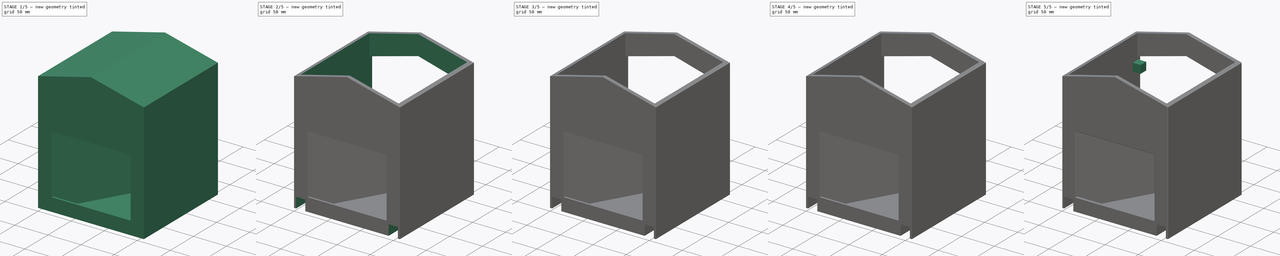
[diagram: build sequence overview — one tinted view per stage of 5, left to right]
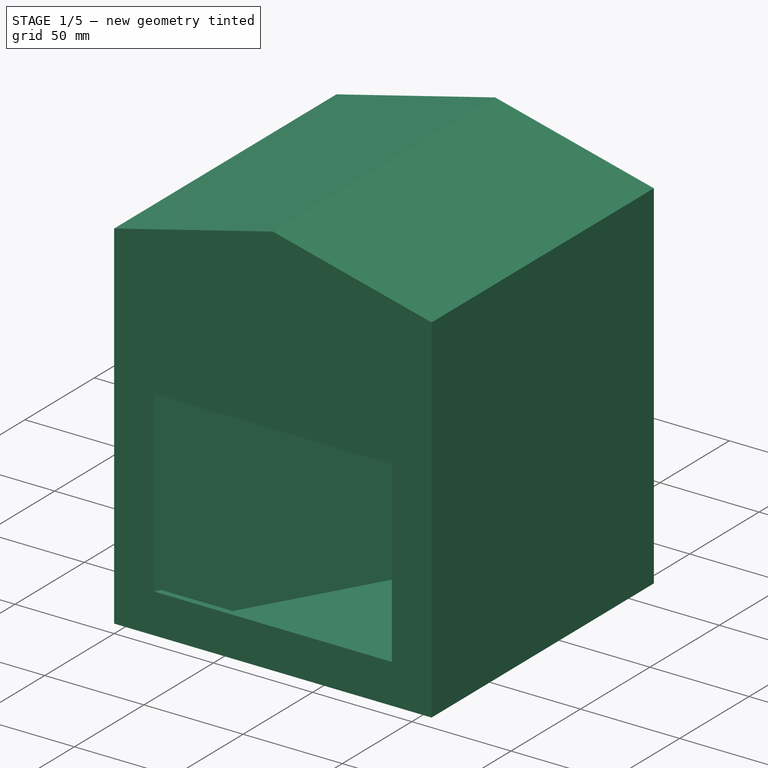
[diagram: stage 1 of 5 — iso view after this stage's code; geometry added in this stage tinted green]
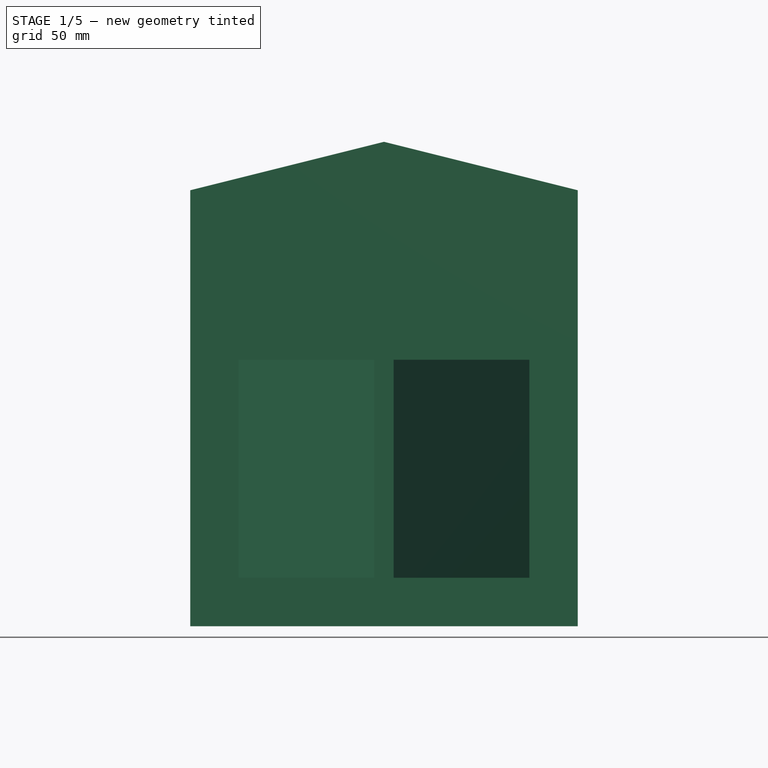
[diagram: stage 1 of 5 — front view after this stage's code; geometry added in this stage tinted green]
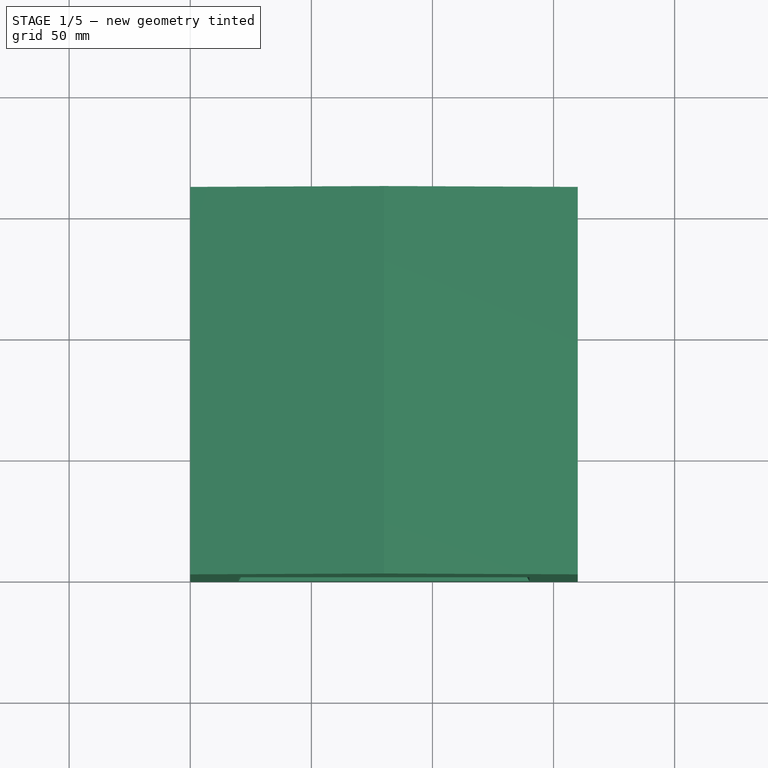
[diagram: stage 1 of 5 — top view after this stage's code; geometry added in this stage tinted green]
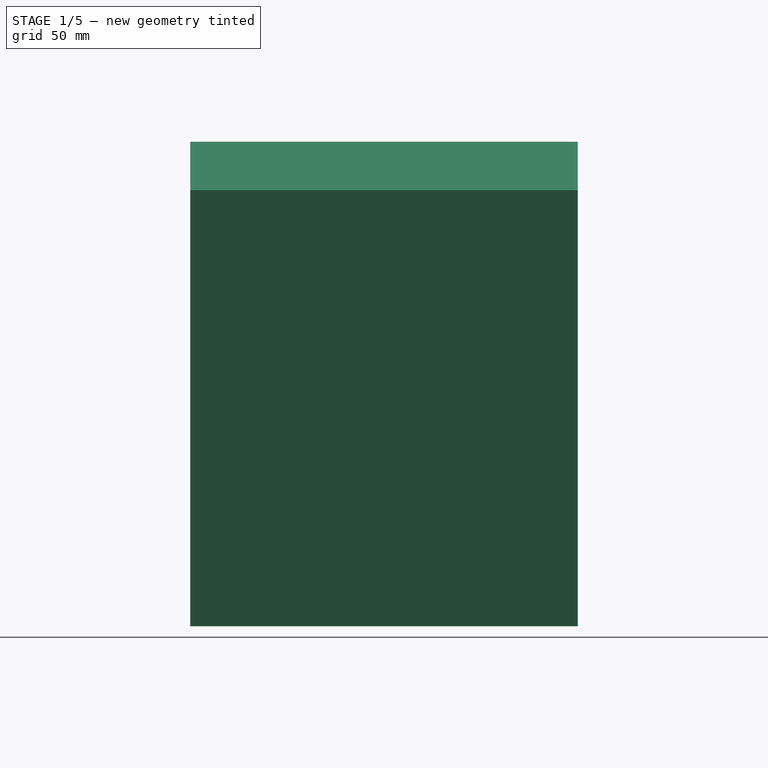
[diagram: stage 1 of 5 — right view after this stage's code; geometry added in this stage tinted green]
FCSTD DOCUMENT  (FreeCAD 0.20R29177 +426 (Git))
Label: house
License: All rights reserved
LicenseURL: http://en.wikipedia.org/wiki/All_rights_reserved
objects: Sketcher::SketchObject×19, PartDesign::Pocket×14, PartDesign::CoordinateSystem×10, PartDesign::Pad×5, PartDesign::Fillet×1, PartDesign::Body×1, App::Part×1
note: 70 computed .brp shape members not serialized (recipe doc carries the construction recipe); baked Part::Feature solids carry a one-line shape summary decoded from their .brp

FEATURE [Sketcher::SketchObject] Sketch
  FullyConstrained = true
  MapMode = 5
  Placement = pos=(0,0,0) rot=(1,0,0;1.5708rad)
  Support = -> [XZ_Plane]
  sketch-geometry (5):
    g0: LineSegment StartX=0 StartY=0 StartZ=0 EndX=0 EndY=180 EndZ=0
    g1: LineSegment StartX=0 StartY=0 StartZ=0 EndX=160 EndY=0 EndZ=0
    g2: LineSegment StartX=160 StartY=0 StartZ=0 EndX=160 EndY=180 EndZ=0
    g3: LineSegment StartX=160 StartY=180 StartZ=0 EndX=80 EndY=200 EndZ=0
    g4: LineSegment StartX=80 StartY=200 StartZ=0 EndX=0 EndY=180 EndZ=0
  constraints (14):
    c: Coincident(g0,g-1)
    c: PointOnObject(g0,g-2)
    c: Coincident(g1,g0)
    c: PointOnObject(g1,g-1)
    c: Coincident(g2,g1)
    c: Vertical(g2)
    c: Coincident(g3,g2)
    c: Coincident(g4,g3)
    c: Coincident(g4,g0)
    c: Equal(g3,g4)
    c: Equal(g2,g0)
    c: DistanceY(g0,g3) = 200
    c: DistanceX(g1,g1) = 160
    c: DistanceY(g0,g0) = 180
FEATURE [PartDesign::Pad] Pad
  Direction = (0,-1,-2e-16)
  Length = 160
  Length2 = 10
  Placement = pos=(0,0,0) rot=(1,0,0;1.5708rad)
  Profile = -> Sketch
  ReferenceAxis = -> Sketch [N_Axis]
  Reversed = true
  Type = 0
FEATURE [Sketcher::SketchObject] Sketch001
  FullyConstrained = true
  MapMode = 5
  Placement = pos=(0,-2e-16,0) rot=(1,0,0;1.5708rad)
  Support = -> [Pad]
  sketch-geometry (4):
    g0: LineSegment StartX=20 StartY=110 StartZ=0 EndX=140 EndY=110 EndZ=0
    g1: LineSegment StartX=140 StartY=110 StartZ=0 EndX=140 EndY=20 EndZ=0
    g2: LineSegment StartX=140 StartY=20 StartZ=0 EndX=20 EndY=20 EndZ=0
    g3: LineSegment StartX=20 StartY=20 StartZ=0 EndX=20 EndY=110 EndZ=0
  constraints (12):
    c: Coincident(g0,g1)
    c: Coincident(g1,g2)
    c: Coincident(g2,g3)
    c: Coincident(g3,g0)
    c: Horizontal(g0)
    c: Horizontal(g2)
    c: Vertical(g1)
    c: Vertical(g3)
    c: DistanceX(g2,g2) = 120
    c: DistanceY(g-1,g2) = 20
    c: DistanceX(g-1,g2) = 20
    c: DistanceY(g3,g3) = 90
FEATURE [PartDesign::Pocket] Pocket
  BaseFeature = -> Pad
  Direction = (0,1,2e-16)
  Length = 100
  Length2 = 5
  Placement = pos=(0,0,0) rot=(1,0,0;1.5708rad)
  Profile = -> Sketch001
  ReferenceAxis = -> Sketch001 [N_Axis]
  Type = 0
FEATURE [Sketcher::SketchObject] Sketch002
  FullyConstrained = true
  MapMode = 5
  Placement = pos=(0,4.4e-15,20) rot=(0,0,1;3.14159rad)
  Support = -> [Pocket]
  sketch-geometry (6):
    g0: LineSegment StartX=-20 StartY=0 StartZ=0 EndX=-76 EndY=-96.9948 EndZ=0
    g1: LineSegment StartX=-140 StartY=0 StartZ=0 EndX=-84 EndY=-96.9948 EndZ=0
    g2: LineSegment StartX=-84 StartY=-96.9948 StartZ=0 EndX=-76 EndY=-96.9948 EndZ=0
    g3: LineSegment StartX=-140 StartY=0 StartZ=0 EndX=-140 EndY=-100 EndZ=0
    g4: LineSegment StartX=-140 StartY=-100 StartZ=0 EndX=-20 EndY=-100 EndZ=0
    g5: LineSegment StartX=-20 StartY=-100 StartZ=0 EndX=-20 EndY=0 EndZ=0
  constraints (18):
    c: PointOnObject(g0,g-1)
    c: PointOnObject(g1,g-1)
    c: DistanceX(g0,g-1) = 20
    c: DistanceX(g1,g0) = 120
    c: Coincident(g2,g1)
    c: Coincident(g2,g0)
    c: Horizontal(g2)
    c: Coincident(g4,g3)
    c: Horizontal(g4)
    c: Coincident(g5,g4)
    c: Vertical(g5)
    c: Vertical(g3)
    c: Equal(g1,g0)
    c: DistanceX(g2,g2) = 8
    c: Angle(g4,g0) = 1.0472
    c: DistanceY(g5,g5) = 100
    c: Coincident(g1,g3)
    c: Coincident(g0,g5)
FEATURE [PartDesign::Pad] Pad001
  BaseFeature = -> Pocket
  Direction = (0,-2e-16,1)
  Length = 90
  Length2 = 10
  Placement = pos=(0,0,0) rot=(1,0,0;1.5708rad)
  Profile = -> Sketch002
  ReferenceAxis = -> Sketch002 [N_Axis]
  Type = 0
FEATURE [Sketcher::SketchObject] Sketch003
  FullyConstrained = true
  MapMode = 5
  Placement = pos=(0,4.4e-15,20) rot=(0,0,1;3.14159rad)
  Support = -> [Pad001]
  sketch-geometry (7):
    g0: LineSegment StartX=-21.7321 StartY=-3 StartZ=0 EndX=-138.268 EndY=-3 EndZ=0
    g1: LineSegment StartX=-138.268 StartY=-3 StartZ=0 EndX=-84 EndY=-96.9948 EndZ=0
    g2: LineSegment StartX=-84 StartY=-96.9948 StartZ=0 EndX=-76 EndY=-96.9948 EndZ=0
    g3: LineSegment StartX=-76 StartY=-96.9948 StartZ=0 EndX=-21.7321 EndY=-3 EndZ=0
    g4: GeomPoint X=-80 Y=-3 Z=0
    g5: LineSegment StartX=-138.268 StartY=-3 StartZ=0 EndX=-140 EndY=0 EndZ=0
    g6: LineSegment StartX=-21.7321 StartY=-3 StartZ=0 EndX=-20 EndY=0 EndZ=0
  constraints (19):
    c: Horizontal(g0)
    c: Coincident(g1,g0)
    c: Coincident(g2,g1)
    c: Horizontal(g2)
    c: Coincident(g3,g2)
    c: Equal(g3,g1)
    c: Symmetric(g0,g0,g4)
    c: DistanceX(g4,g-1) = 80
    c: DistanceX(g2,g2) = 8
    c: Coincident(g0,g3)
    c: Angle(g3,g-1) = 2.0944
    c: DistanceY(g0,g-1) = 3
    c: Coincident(g5,g0)
    c: PointOnObject(g5,g-1)
    c: Coincident(g6,g0)
    c: PointOnObject(g6,g-1)
    c: Parallel(g3,g6)
    c: Parallel(g1,g5)
    c: DistanceX(g5,g6) = 120
FEATURE [PartDesign::Pocket] Pocket001
  BaseFeature = -> Pad001
  Direction = (0,2e-16,-1)
  Length = 16
  Length2 = 5
  Placement = pos=(0,0,0) rot=(1,0,0;1.5708rad)
  Profile = -> Sketch003
  ReferenceAxis = -> Sketch003 [N_Axis]
  Type = 0
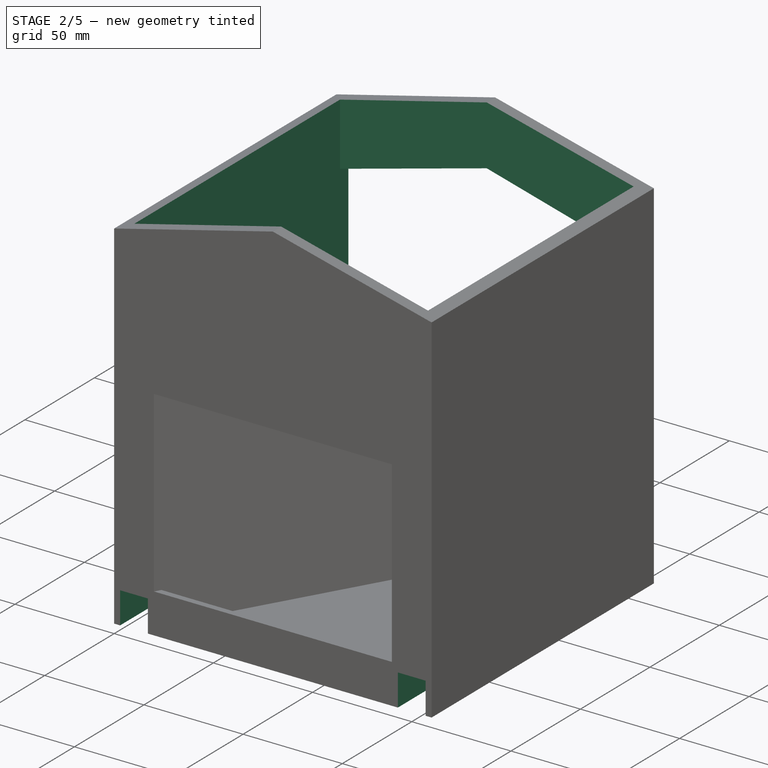
[diagram: stage 2 of 5 — iso view after this stage's code; geometry added in this stage tinted green]
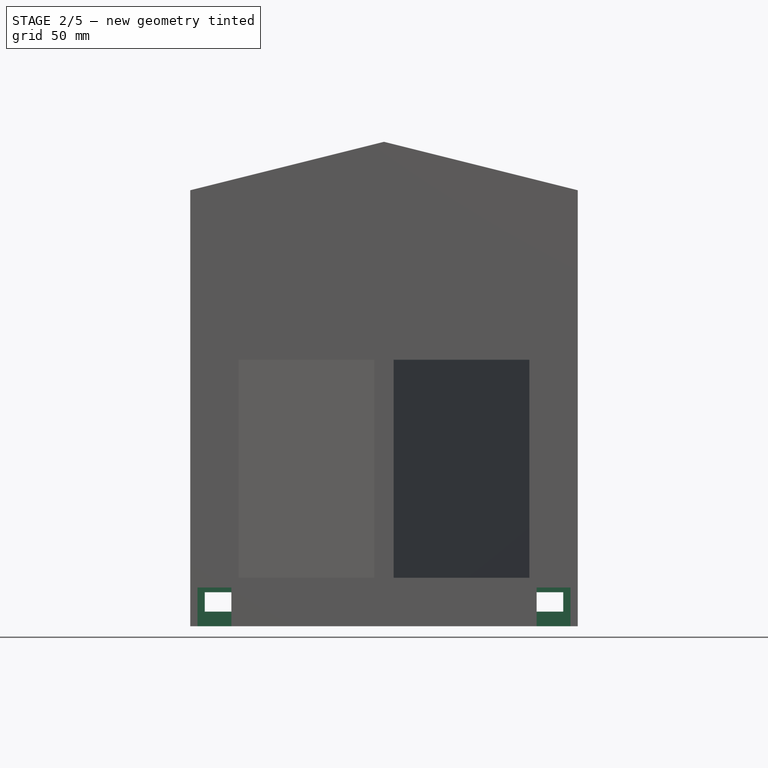
[diagram: stage 2 of 5 — front view after this stage's code; geometry added in this stage tinted green]
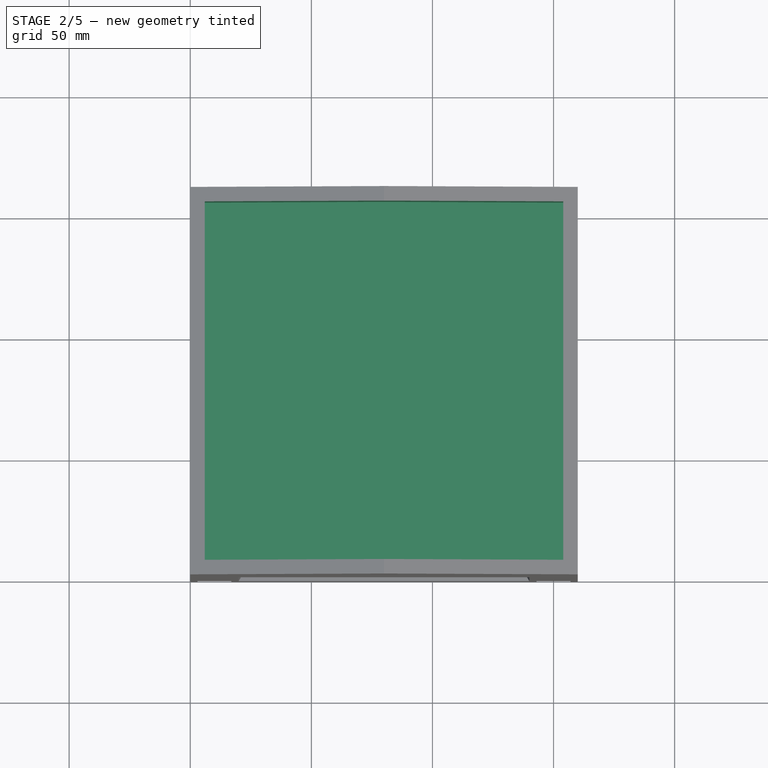
[diagram: stage 2 of 5 — top view after this stage's code; geometry added in this stage tinted green]
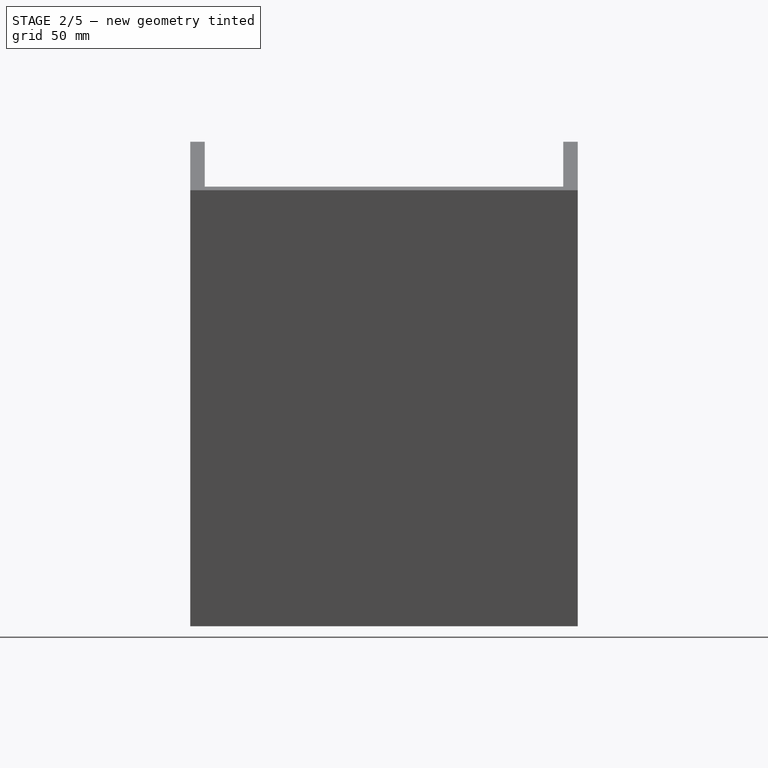
[diagram: stage 2 of 5 — right view after this stage's code; geometry added in this stage tinted green]
FEATURE [Sketcher::SketchObject] Sketch004
  FullyConstrained = true
  MapMode = 5
  Placement = pos=(0,160,-3e-16) rot=(-1,0,0;1.5708rad)
  Support = -> [Pocket001]
  sketch-geometry (5):
    g0: LineSegment StartX=6 StartY=-150 StartZ=0 EndX=6 EndY=-6 EndZ=0
    g1: LineSegment StartX=6 StartY=-6 StartZ=0 EndX=154 EndY=-6 EndZ=0
    g2: LineSegment StartX=154 StartY=-6 StartZ=0 EndX=154 EndY=-150 EndZ=0
    g3: LineSegment StartX=154 StartY=-150 StartZ=0 EndX=80 EndY=-170 EndZ=0
    g4: LineSegment StartX=80 StartY=-170 StartZ=0 EndX=6 EndY=-150 EndZ=0
  constraints (15):
    c: Coincident(g0,g1)
    c: Coincident(g1,g2)
    c: Horizontal(g1)
    c: Vertical(g0)
    c: Vertical(g2)
    c: DistanceY(g0,g-1) = 150
    c: DistanceY(g0,g-1) = 6
    c: DistanceX(g-1,g0) = 6
    c: DistanceX(g1,g1) = 148
    c: Coincident(g3,g2)
    c: Coincident(g4,g3)
    c: Coincident(g4,g0)
    c: Equal(g3,g4)
    c: DistanceY(g3,g0) = 20
    c: Horizontal(g0,g2)
FEATURE [PartDesign::Pocket] Pocket002
  BaseFeature = -> Pocket001
  Direction = (0,-1,-2e-16)
  Length = 60
  Length2 = 5
  Placement = pos=(0,0,0) rot=(1,0,0;1.5708rad)
  Profile = -> Sketch004
  ReferenceAxis = -> Sketch004 [N_Axis]
  Type = 0
FEATURE [Sketcher::SketchObject] Sketch006
  AttachmentOffset = pos=(0,0,200) rot=(0,0,1;0rad)
  FullyConstrained = true
  MapMode = 5
  Placement = pos=(0,0,200) rot=(0,0,1;0rad)
  Support = -> [XY_Plane]
  sketch-geometry (4):
    g0: LineSegment StartX=6 StartY=154 StartZ=0 EndX=154 EndY=154 EndZ=0
    g1: LineSegment StartX=154 StartY=154 StartZ=0 EndX=154 EndY=6 EndZ=0
    g2: LineSegment StartX=154 StartY=6 StartZ=0 EndX=6 EndY=6 EndZ=0
    g3: LineSegment StartX=6 StartY=6 StartZ=0 EndX=6 EndY=154 EndZ=0
  constraints (12):
    c: Coincident(g0,g1)
    c: Coincident(g1,g2)
    c: Coincident(g2,g3)
    c: Coincident(g3,g0)
    c: Horizontal(g0)
    c: Horizontal(g2)
    c: Vertical(g1)
    c: Vertical(g3)
    c: DistanceX(g-1,g2) = 6
    c: DistanceY(g-1,g2) = 6
    c: DistanceX(g0,g0) = 148
    c: DistanceY(g3,g3) = 148
FEATURE [PartDesign::Pocket] Pocket004
  BaseFeature = -> Pocket002
  Direction = (0,0,-1)
  Length = 80
  Length2 = 5
  Placement = pos=(0,0,0) rot=(1,0,0;1.5708rad)
  Profile = -> Sketch006
  ReferenceAxis = -> Sketch006 [N_Axis]
  Type = 0
FEATURE [Sketcher::SketchObject] Sketch007
  ExternalGeometry = -> [Pocket004]
  FullyConstrained = true
  MapMode = 5
  Placement = pos=(0,-2e-16,0) rot=(1,0,0;1.5708rad)
  Support = -> [Pocket004]
  sketch-geometry (9):
    g0: LineSegment StartX=3 StartY=16 StartZ=0 EndX=17 EndY=16 EndZ=0
    g1: LineSegment StartX=17 StartY=16 StartZ=0 EndX=17 EndY=0 EndZ=0
    g2: LineSegment StartX=17 StartY=0 StartZ=0 EndX=3 EndY=0 EndZ=0
    g3: LineSegment StartX=3 StartY=0 StartZ=0 EndX=3 EndY=16 EndZ=0
    g4: LineSegment StartX=143 StartY=16 StartZ=0 EndX=157 EndY=16 EndZ=0
    g5: LineSegment StartX=157 StartY=16 StartZ=0 EndX=157 EndY=8.51283e-11 EndZ=0
    g6: LineSegment StartX=157 StartY=8.51283e-11 StartZ=0 EndX=143 EndY=8.51283e-11 EndZ=0
    g7: LineSegment StartX=143 StartY=8.51283e-11 StartZ=0 EndX=143 EndY=16 EndZ=0
    g8: LineSegment StartX=160 StartY=0 StartZ=0 EndX=160 EndY=16 EndZ=0
  constraints (28):
    c: Coincident(g0,g1)
    c: Coincident(g1,g2)
    c: Coincident(g2,g3)
    c: Coincident(g3,g0)
    c: Horizontal(g0)
    c: Horizontal(g2)
    c: Vertical(g1)
    c: Vertical(g3)
    c: DistanceX(g2,g2) = 14
    c: DistanceY(g3,g3) = 16
    c: Coincident(g4,g5)
    c: Coincident(g5,g6)
    c: Coincident(g6,g7)
    c: Coincident(g7,g4)
    c: Horizontal(g4)
    c: Horizontal(g6)
    c: Vertical(g5)
    c: Vertical(g7)
    c: Equal(g4,g0)
    c: Equal(g1,g7)
    c: Horizontal(g4,g0)
    c: DistanceX(g-1,g2) = 3
    c: PointOnObject(g8,g-1)
    c: Vertical(g8)
    c: DistanceX(g-1,g8) = 160
    c: DistanceX(g5,g8) = 3
    c: Horizontal(g4,g8)
    c: PointOnObject(g2,g-1)
FEATURE [PartDesign::Pocket] Pocket005
  BaseFeature = -> Pocket004
  Direction = (0,1,2e-16)
  Length = 100
  Length2 = 5
  Placement = pos=(0,0,0) rot=(1,0,0;1.5708rad)
  Profile = -> Sketch007
  ReferenceAxis = -> Sketch007 [N_Axis]
  Type = 0
FEATURE [Sketcher::SketchObject] Sketch008
  FullyConstrained = true
  MapMode = 5
  Placement = pos=(0,3.6e-15,16) rot=(1,0,0;3.14159rad)
  Support = -> [Pocket005]
  sketch-geometry (22):
    g0: LineSegment StartX=3.65 StartY=25 StartZ=0 EndX=16.35 EndY=25 EndZ=0
    g1: LineSegment StartX=16.35 StartY=25 StartZ=0 EndX=16.35 EndY=-50 EndZ=0
    g2: LineSegment StartX=16.35 StartY=-50 StartZ=0 EndX=3.65 EndY=-50 EndZ=0
    g3: LineSegment StartX=3.65 StartY=-50 StartZ=0 EndX=3.65 EndY=25 EndZ=0
    g4: LineSegment StartX=10 StartY=25 StartZ=0 EndX=10 EndY=-50 EndZ=0
    g5: LineSegment StartX=16.35 StartY=-12.5 StartZ=0 EndX=3.65 EndY=-12.5 EndZ=0
    g6: GeomPoint X=10 Y=-12.5 Z=0
    g7: GeomPoint X=10 Y=-44.5 Z=0
    g8: GeomPoint X=10 Y=-34.5 Z=0
    g9: LineSegment StartX=3 StartY=-24.5 StartZ=0 EndX=17 EndY=-24.5 EndZ=0
    g10: LineSegment StartX=17 StartY=-24.5 StartZ=0 EndX=17 EndY=-54.5 EndZ=0
    g11: LineSegment StartX=17 StartY=-54.5 StartZ=0 EndX=3 EndY=-54.5 EndZ=0
    g12: LineSegment StartX=3 StartY=-54.5 StartZ=0 EndX=3 EndY=-24.5 EndZ=0
    g13: GeomPoint X=10 Y=-54.5 Z=0
    g14: GeomPoint X=10 Y=-39.5 Z=0
    g15: GeomPoint X=10 Y=-24.5 Z=0
    g16: LineSegment StartX=143 StartY=-24.5 StartZ=0 EndX=157 EndY=-24.5 EndZ=0
    g17: LineSegment StartX=157 StartY=-24.5 StartZ=0 EndX=157 EndY=-54.5 EndZ=0
    g18: LineSegment StartX=157 StartY=-54.5 StartZ=0 EndX=143 EndY=-54.5 EndZ=0
    g19: LineSegment StartX=143 StartY=-54.5 StartZ=0 EndX=143 EndY=-24.5 EndZ=0
    g20: GeomPoint X=160 Y=0 Z=0
    g21: GeomPoint X=150 Y=-24.5 Z=0
  constraints (54):
    c: Coincident(g0,g1)
    c: Coincident(g1,g2)
    c: Coincident(g2,g3)
    c: Coincident(g3,g0)
    c: Horizontal(g0)
    c: Horizontal(g2)
    c: Vertical(g1)
    c: Vertical(g3)
    c: PointOnObject(g4,g2)
    c: Vertical(g4)
    c: PointOnObject(g5,g3)
    c: Horizontal(g5)
    c: PointOnObject(g6,g5)
    c: PointOnObject(g6,g4)
    c: Symmetric(g0,g0,g4)
    c: Symmetric(g0,g1,g5)
    c: DistanceY(g3,g3) = 75
    c: DistanceX(g0,g0) = 12.7
    c: DistanceY(g-1,g0) = 25
    c: DistanceX(g-1,g4) = 10
    c: PointOnObject(g7,g4)
    c: PointOnObject(g8,g4)
    c: DistanceY(g8,g5) = 22
    c: DistanceY(g7,g8) = 10
    c: Coincident(g9,g10)
    c: Coincident(g10,g11)
    c: Coincident(g11,g12)
    c: Coincident(g12,g9)
    c: Horizontal(g9)
    c: Horizontal(g11)
    c: Vertical(g10)
    c: Vertical(g12)
    c: DistanceY(g10,g10) = 30
    c: DistanceX(g9,g9) = 14
    c: Symmetric(g11,g10,g13)
    c: PointOnObject(g13,g4)
    c: Symmetric(g8,g7,g14)
    c: PointOnObject(g15,g9)
    c: Symmetric(g15,g13,g14)
    c: Coincident(g16,g17)
    c: Coincident(g17,g18)
    c: Coincident(g18,g19)
    c: Coincident(g19,g16)
    c: Horizontal(g16)
    c: Horizontal(g18)
    c: Vertical(g17)
    c: Vertical(g19)
    c: Equal(g16,g9)
    c: Equal(g10,g19)
    c: Horizontal(g16,g9)
    c: PointOnObject(g20,g-1)
    c: DistanceX(g-1,g20) = 160
    c: Symmetric(g16,g16,g21)
    c: DistanceX(g21,g20) = 10
FEATURE [PartDesign::Pad] Pad002
  BaseFeature = -> Pocket005
  Direction = (0,2e-16,-1)
  Length = 2
  Length2 = 10
  Placement = pos=(0,0,0) rot=(1,0,0;1.5708rad)
  Profile = -> Sketch008
  ReferenceAxis = -> Sketch008 [N_Axis]
  Type = 0
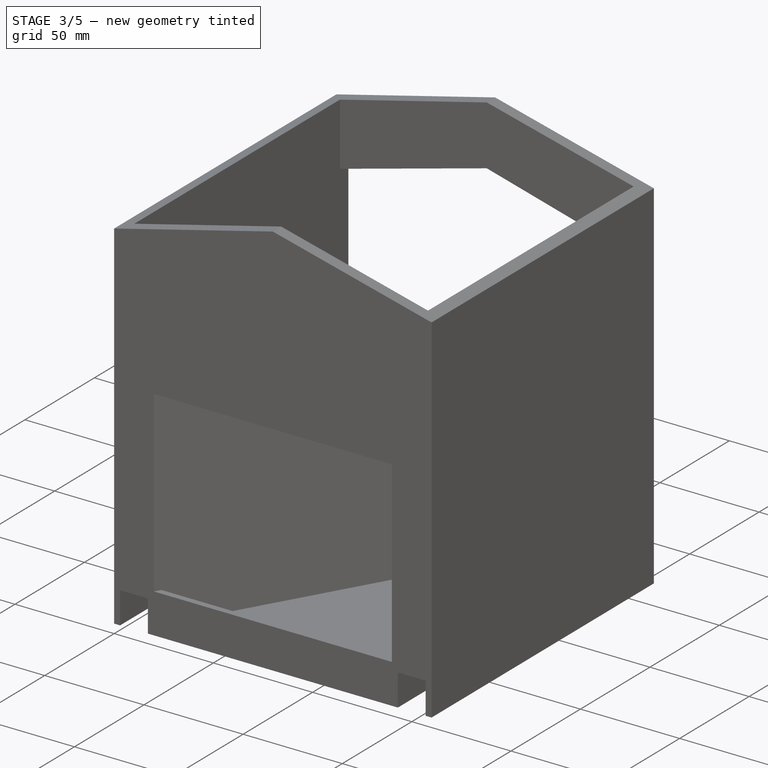
[diagram: stage 3 of 5 — iso view after this stage's code; geometry added in this stage tinted green]
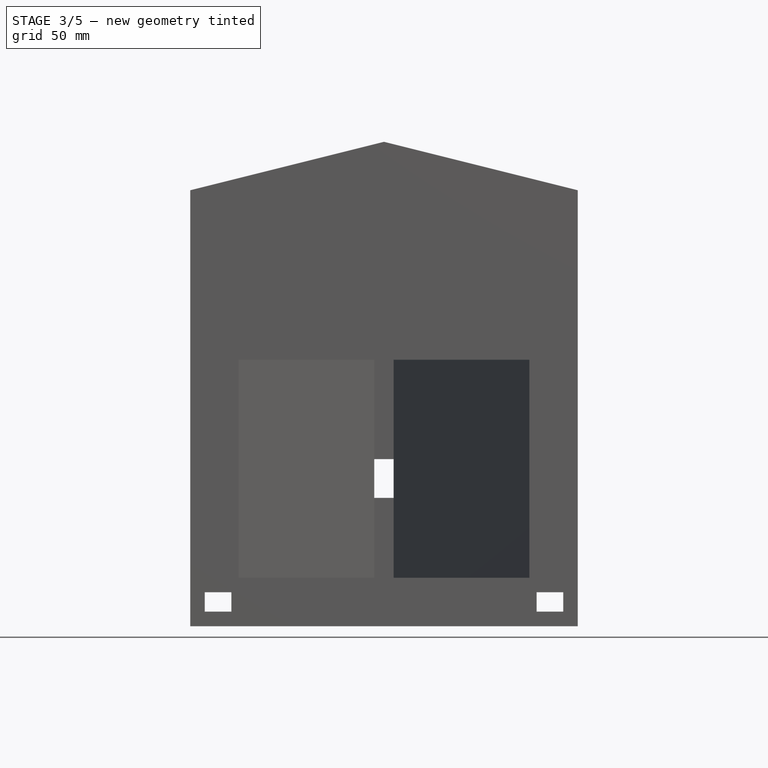
[diagram: stage 3 of 5 — front view after this stage's code; geometry added in this stage tinted green]
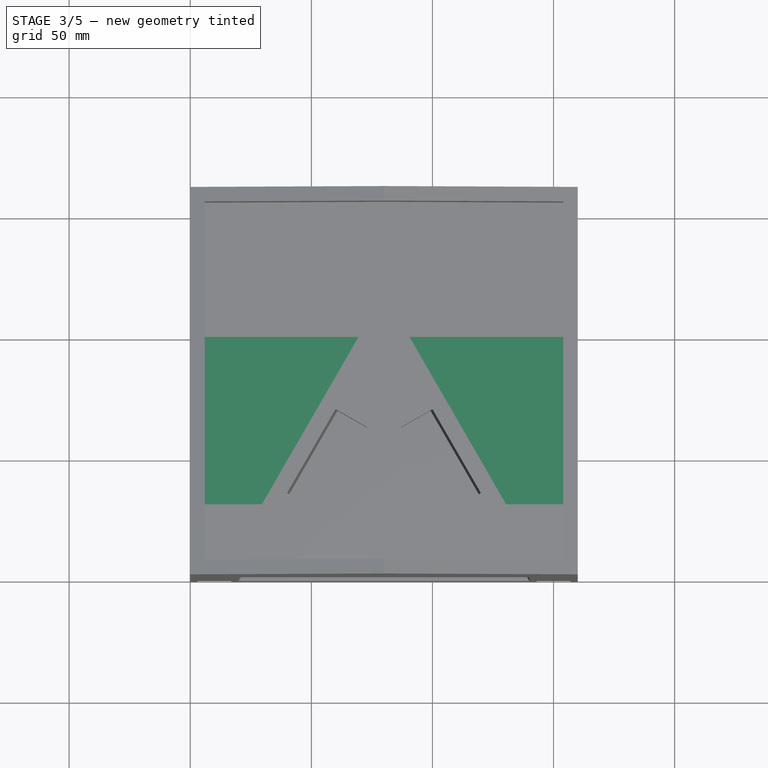
[diagram: stage 3 of 5 — top view after this stage's code; geometry added in this stage tinted green]
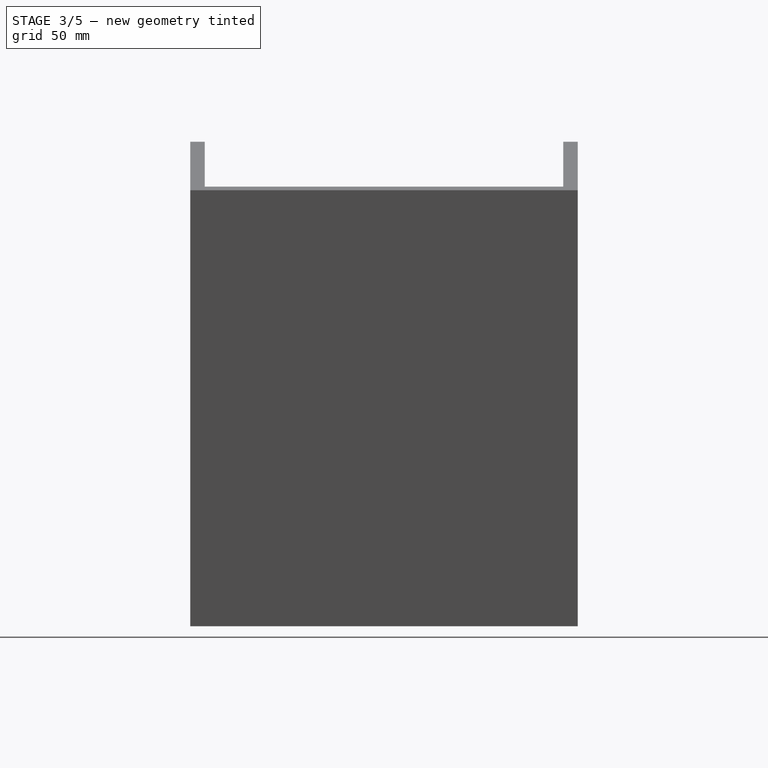
[diagram: stage 3 of 5 — right view after this stage's code; geometry added in this stage tinted green]
FEATURE [Sketcher::SketchObject] Sketch010
  FullyConstrained = true
  MapMode = 5
  Placement = pos=(0,2.4e-14,110) rot=(1,0,0;3.14159rad)
  sketch-geometry (11):
    g0: LineSegment StartX=40 StartY=-34.641 StartZ=0 EndX=60 EndY=-69.282 EndZ=0
    g1: LineSegment StartX=60 StartY=-69.282 StartZ=0 EndX=72.9904 EndY=-61.782 EndZ=0
    g2: LineSegment StartX=72.9904 StartY=-61.782 StartZ=0 EndX=52.9904 EndY=-27.141 EndZ=0
    g3: LineSegment StartX=52.9904 StartY=-27.141 StartZ=0 EndX=40 EndY=-34.641 EndZ=0
    g4: LineSegment StartX=20 StartY=0 StartZ=0 EndX=60 EndY=-69.282 EndZ=0
    g5: LineSegment StartX=107.01 StartY=-27.141 StartZ=0 EndX=87.0096 EndY=-61.782 EndZ=0
    g6: LineSegment StartX=87.0096 StartY=-61.782 StartZ=0 EndX=100 EndY=-69.282 EndZ=0
    g7: LineSegment StartX=100 StartY=-69.282 StartZ=0 EndX=120 EndY=-34.641 EndZ=0
    g8: LineSegment StartX=120 StartY=-34.641 StartZ=0 EndX=107.01 EndY=-27.141 EndZ=0
    g9: LineSegment StartX=120 StartY=-34.641 StartZ=0 EndX=140 EndY=0 EndZ=0
    g10: GeomPoint X=110 Y=-51.9615 Z=0
  constraints (31):
    c: Coincident(g1,g0)
    c: Coincident(g2,g1)
    c: Coincident(g3,g2)
    c: Coincident(g3,g0)
    c: Perpendicular(g3,g2)
    c: Parallel(g2,g0)
    c: Parallel(g3,g1)
    c: PointOnObject(g4,g-1)
    c: DistanceX(g-1,g4) = 20
    c: Angle(g-1,g4) = 2.0944
    c: PointOnObject(g0,g4)
    c: Distance(g3) = 15
    c: Distance(g2) = 40
    c: Distance(g0,g4) = 40
    c: Coincident(g4,g0)
    c: Coincident(g6,g5)
    c: Coincident(g7,g6)
    c: Coincident(g8,g7)
    c: Coincident(g8,g5)
    c: Parallel(g8,g6)
    c: Parallel(g7,g5)
    c: Perpendicular(g5,g6)
    c: Coincident(g9,g7)
    c: PointOnObject(g9,g-1)
    c: Parallel(g7,g9)
    c: Angle(g-1,g9) = 1.0472
    c: Equal(g5,g2)
    c: Equal(g1,g6)
    c: DistanceX(g4,g9) = 120
    c: Horizontal(g1,g5)
    c: Symmetric(g6,g7,g10)
FEATURE [PartDesign::Pocket] Pocket008
  BaseFeature = -> Pad002
  Direction = (0,0,1)
  Length = 10
  Length2 = 5
  Placement = pos=(0,0,0) rot=(1,0,0;1.5708rad)
  Profile = -> Sketch010
  ReferenceAxis = -> Sketch010 [N_Axis]
  Type = 0
FEATURE [Sketcher::SketchObject] Sketch011
  FullyConstrained = true
  MapMode = 5
  Placement = pos=(0,2.66e-14,120) rot=(0,0,1;3.14159rad)
  Support = -> [Pocket008]
  sketch-geometry (10):
    g0: LineSegment StartX=-130.415 StartY=-30 StartZ=0 EndX=-90 EndY=-100 EndZ=0
    g1: LineSegment StartX=-29.5855 StartY=-30 StartZ=0 EndX=-70 EndY=-100 EndZ=0
    g2: LineSegment StartX=-70 StartY=-100 StartZ=0 EndX=-6 EndY=-100 EndZ=0
    g3: LineSegment StartX=-90 StartY=-100 StartZ=0 EndX=-154 EndY=-100 EndZ=0
    g4: GeomPoint X=-80 Y=0 Z=0
    g5: LineSegment StartX=-80 StartY=0 StartZ=0 EndX=-80 EndY=-160 EndZ=0
    g6: LineSegment StartX=-130.415 StartY=-30 StartZ=0 EndX=-154 EndY=-30 EndZ=0
    g7: LineSegment StartX=-154 StartY=-30 StartZ=0 EndX=-154 EndY=-100 EndZ=0
    g8: LineSegment StartX=-6 StartY=-100 StartZ=0 EndX=-6 EndY=-30 EndZ=0
    g9: LineSegment StartX=-6 StartY=-30 StartZ=0 EndX=-29.5855 EndY=-30 EndZ=0
  constraints (28):
    c: Coincident(g2,g1)
    c: Coincident(g3,g0)
    c: Horizontal(g3)
    c: Horizontal(g2)
    c: Equal(g2,g3)
    c: Horizontal(g1,g0)
    c: DistanceY(g2,g-1) = 100
    c: PointOnObject(g4,g-1)
    c: DistanceX(g4,g-1) = 80
    c: Coincident(g5,g4)
    c: DistanceY(g5,g5) = 160
    c: Angle(g2,g1) = 1.0472
    c: Symmetric(g0,g1,g5)
    c: DistanceX(g0,g1) = 20
    c: Coincident(g6,g0)
    c: Horizontal(g6)
    c: Coincident(g7,g6)
    c: Vertical(g7)
    c: Coincident(g3,g7)
    c: Coincident(g8,g2)
    c: Vertical(g8)
    c: Coincident(g9,g8)
    c: Coincident(g9,g1)
    c: Horizontal(g9)
    c: Equal(g7,g8)
    c: Equal(g9,g6)
    c: DistanceY(g7,g7) = 70
    c: DistanceX(g3,g2) = 148
FEATURE [PartDesign::Pocket] Pocket009
  BaseFeature = -> Pocket008
  Direction = (0,0,-1)
  Length = 50
  Length2 = 5
  Placement = pos=(0,0,0) rot=(1,0,0;1.5708rad)
  Profile = -> Sketch011
  ReferenceAxis = -> Sketch011 [N_Axis]
  Type = 0
FEATURE [Sketcher::SketchObject] Sketch005  label="camera_hole"
  FullyConstrained = true
  MapMode = 5
  Placement = pos=(0,96.9948,-2.15e-14) rot=(1,0,0;1.5708rad)
  Support = -> [Pocket009]
  sketch-geometry (7):
    g0: LineSegment StartX=76 StartY=69 StartZ=0 EndX=84 EndY=69 EndZ=0
    g1: LineSegment StartX=84 StartY=69 StartZ=0 EndX=84 EndY=53 EndZ=0
    g2: LineSegment StartX=84 StartY=53 StartZ=0 EndX=76 EndY=53 EndZ=0
    g3: LineSegment StartX=76 StartY=53 StartZ=0 EndX=76 EndY=69 EndZ=0
    g4: LineSegment StartX=76 StartY=61 StartZ=0 EndX=84 EndY=61 EndZ=0
    g5: LineSegment StartX=76 StartY=65 StartZ=0 EndX=84 EndY=65 EndZ=0
    g6: GeomPoint X=80 Y=53 Z=0
  constraints (19):
    c: Coincident(g0,g1)
    c: Coincident(g1,g2)
    c: Coincident(g2,g3)
    c: Coincident(g3,g0)
    c: Horizontal(g0)
    c: Horizontal(g2)
    c: Vertical(g1)
    c: Vertical(g3)
    c: DistanceX(g0,g0) = 8
    c: PointOnObject(g4,g3)
    c: Horizontal(g4)
    c: PointOnObject(g5,g3)
    c: Horizontal(g5)
    c: Symmetric(g0,g1,g4)
    c: Symmetric(g0,g4,g5)
    c: DistanceY(g-1,g5) = 65
    c: DistanceY(g3,g3) = 16
    c: Symmetric(g2,g1,g6)
    c: DistanceX(g-1,g6) = 80
FEATURE [Sketcher::SketchObject] Sketch009
  FullyConstrained = true
  MapMode = 5
  Placement = pos=(0,1.4e-15,14) rot=(1,0,0;3.14159rad)
  Support = -> [Pocket009]
  sketch-geometry (14):
    g0: LineSegment StartX=3.65 StartY=25 StartZ=0 EndX=16.35 EndY=25 EndZ=0
    g1: LineSegment StartX=16.35 StartY=25 StartZ=0 EndX=16.35 EndY=-50 EndZ=0
    g2: LineSegment StartX=16.35 StartY=-50 StartZ=0 EndX=3.65 EndY=-50 EndZ=0
    g3: LineSegment StartX=3.65 StartY=-50 StartZ=0 EndX=3.65 EndY=25 EndZ=0
    g4: LineSegment StartX=3.65 StartY=-12.5 StartZ=0 EndX=16.35 EndY=-12.5 EndZ=0
    g5: LineSegment StartX=10 StartY=25 StartZ=0 EndX=10 EndY=-50 EndZ=0
    g6: GeomPoint X=10 Y=-12.5 Z=0
    g7: GeomPoint X=10 Y=-44.5 Z=0
    g8: GeomPoint X=10 Y=-34.5 Z=0
    g9: Circle CenterX=10 CenterY=-34.5 CenterZ=0 NormalX=0 NormalY=0 NormalZ=1 AngleXU=0 Radius=2.5
    g10: Circle CenterX=10 CenterY=-44.5 CenterZ=0 NormalX=0 NormalY=0 NormalZ=1 AngleXU=0 Radius=2.5
    g11: Circle CenterX=150 CenterY=-34.5 CenterZ=0 NormalX=0 NormalY=0 NormalZ=1 AngleXU=0 Radius=2.5
    g12: Circle CenterX=150 CenterY=-44.5 CenterZ=0 NormalX=0 NormalY=0 NormalZ=1 AngleXU=0 Radius=2.5
    g13: GeomPoint X=160 Y=0 Z=0
  constraints (36):
    c: Coincident(g0,g1)
    c: Coincident(g1,g2)
    c: Coincident(g2,g3)
    c: Coincident(g3,g0)
    c: Horizontal(g0)
    c: Horizontal(g2)
    c: Vertical(g1)
    c: Vertical(g3)
    c: PointOnObject(g4,g3)
    c: Horizontal(g4)
    c: Vertical(g5)
    c: PointOnObject(g6,g5)
    c: PointOnObject(g6,g4)
    c: Symmetric(g0,g1,g4)
    c: Symmetric(g0,g0,g5)
    c: PointOnObject(g5,g2)
    c: DistanceX(g0,g0) = 12.7
    c: DistanceY(g1,g1) = 75
    c: DistanceY(g-1,g0) = 25
    c: DistanceX(g-1,g5) = 10
    c: PointOnObject(g7,g5)
    c: PointOnObject(g8,g5)
    c: DistanceY(g7,g8) = 10
    c: DistanceY(g8,g6) = 22
    c: Coincident(g9,g8)
    c: Coincident(g10,g7)
    c: Diameter(g9) = 5
    c: Equal(g10,g9)
    c: Vertical(g12,g11)
    c: Equal(g11,g12)
    c: Equal(g12,g10)
    c: Horizontal(g11,g9)
    c: Horizontal(g12,g10)
    c: PointOnObject(g13,g-1)
    c: DistanceX(g-1,g13) = 160
    c: DistanceX(g11,g13) = 10
FEATURE [PartDesign::Pocket] Pocket010
  BaseFeature = -> Pocket009
  Direction = (0,-1e-16,1)
  Length = 10
  Length2 = 5
  Placement = pos=(0,0,0) rot=(1,0,0;1.5708rad)
  Profile = -> Sketch009
  ReferenceAxis = -> Sketch009 [N_Axis]
  Type = 0
FEATURE [PartDesign::Pocket] Pocket011
  BaseFeature = -> Pocket010
  Direction = (0,1,2e-16)
  Length = 5
  Length2 = 5
  Placement = pos=(0,0,0) rot=(1,0,0;1.5708rad)
  Profile = -> Sketch005
  ReferenceAxis = -> Sketch005 [N_Axis]
  Type = 0
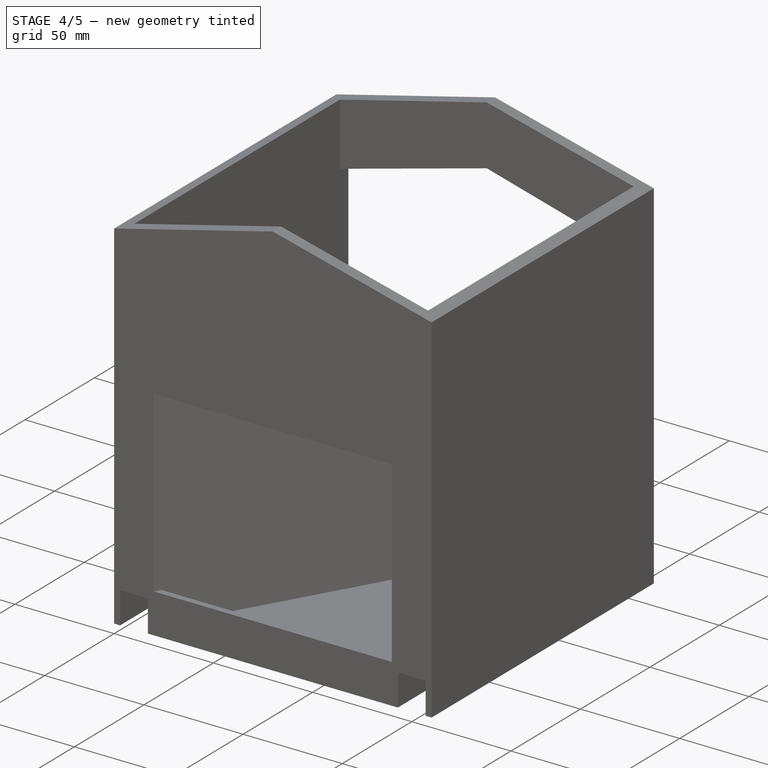
[diagram: stage 4 of 5 — iso view after this stage's code; geometry added in this stage tinted green]
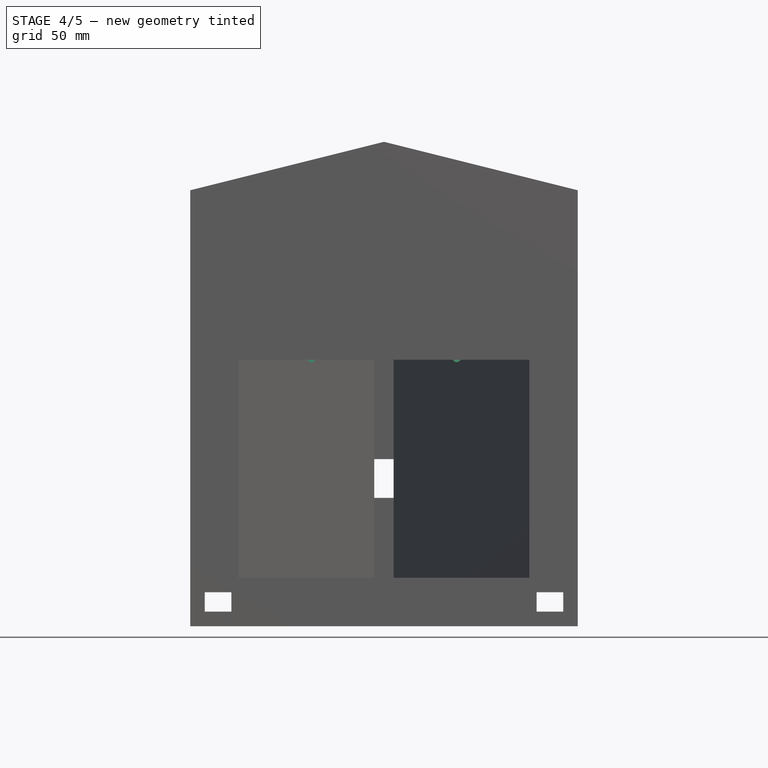
[diagram: stage 4 of 5 — front view after this stage's code; geometry added in this stage tinted green]
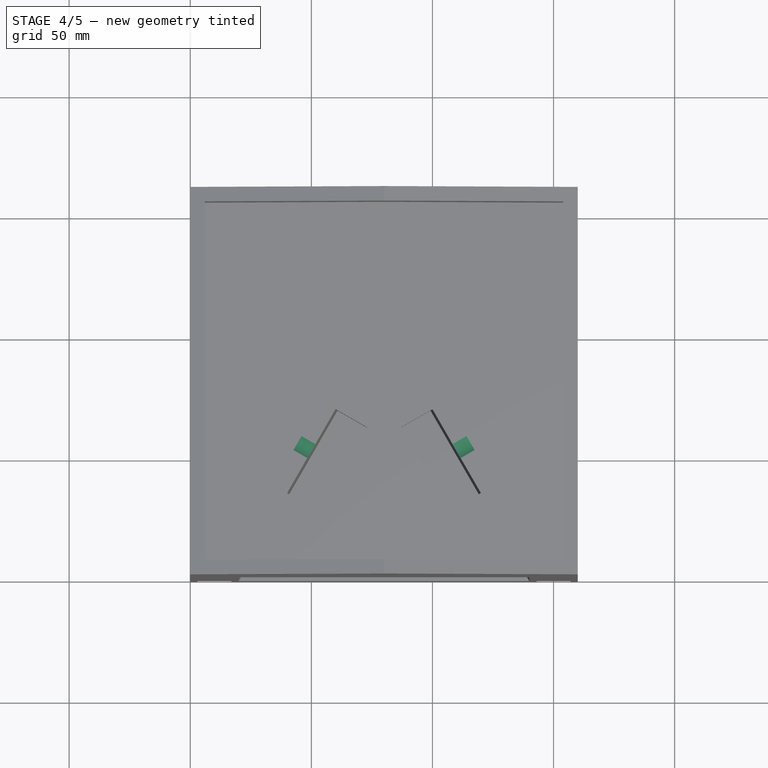
[diagram: stage 4 of 5 — top view after this stage's code; geometry added in this stage tinted green]
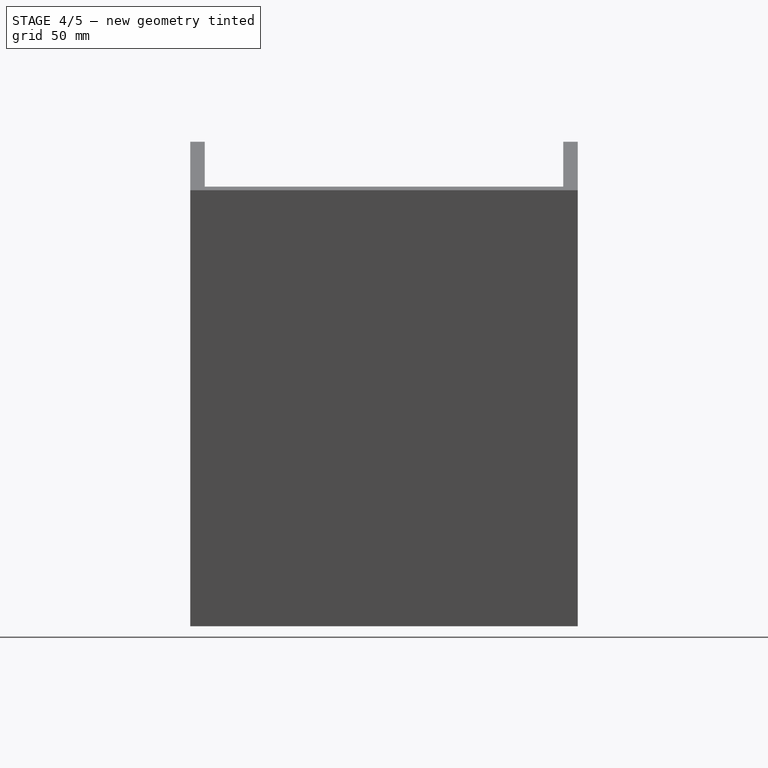
[diagram: stage 4 of 5 — right view after this stage's code; geometry added in this stage tinted green]
FEATURE [Sketcher::SketchObject] Sketch012
  ExternalGeometry = -> [Pocket011]
  FullyConstrained = true
  MapMode = 5
  Placement = pos=(9.19873,-5.31089,2.3e-15) rot=(0.694747,-0.186157,-0.694747;3.50969rad)
  Support = -> [Pocket011]
  sketch-geometry (2):
    g0: Circle CenterX=-115 CenterY=-70 CenterZ=0 NormalX=0 NormalY=0 NormalZ=1 AngleXU=0 Radius=6
    g1: GeomPoint X=-120 Y=-70 Z=0
  constraints (4):
    c: Diameter(g0) = 12
    c: Symmetric(g-3,g-3,g1)
    c: Horizontal(g0,g1)
    c: Distance(g0,g1) = 5
FEATURE [PartDesign::Pocket] Pocket012
  BaseFeature = -> Pocket011
  Direction = (0.866025,-0.5,2e-16)
  Length = 10
  Length2 = 5
  Placement = pos=(0,0,0) rot=(1,0,0;1.5708rad)
  Profile = -> Sketch012
  ReferenceAxis = -> Sketch012 [N_Axis]
  Type = 0
FEATURE [Sketcher::SketchObject] Sketch013
  ExternalGeometry = -> [Pocket012]
  FullyConstrained = true
  MapMode = 5
  Placement = pos=(9.19873,-5.31089,2.3e-15) rot=(0.694747,-0.186157,-0.694747;3.50969rad)
  Support = -> [Pocket012]
  sketch-geometry (3):
    g0: Circle CenterX=-107 CenterY=-52.5 CenterZ=0 NormalX=0 NormalY=0 NormalZ=1 AngleXU=0 Radius=2.75
    g1: Circle CenterX=-107 CenterY=-87.5 CenterZ=0 NormalX=0 NormalY=0 NormalZ=1 AngleXU=0 Radius=2.75
    g2: LineSegment StartX=-115 StartY=-70 StartZ=0 EndX=-75 EndY=-70 EndZ=0
  constraints (8):
    c: DistanceY(g1,g0) = 35
    c: Coincident(g2,g-3)
    c: Horizontal(g2)
    c: DistanceX(g2,g2) = 40
    c: Symmetric(g0,g1,g2)
    c: DistanceX(g2,g0) = 8
    c: Diameter(g0) = 5.5
    c: Equal(g1,g0)
FEATURE [PartDesign::Pocket] Pocket013
  BaseFeature = -> Pocket012
  Direction = (0.866025,-0.5,2e-16)
  Length = 5
  Length2 = 5
  Placement = pos=(0,0,0) rot=(1,0,0;1.5708rad)
  Profile = -> Sketch013
  ReferenceAxis = -> Sketch013 [N_Axis]
  Type = 0
FEATURE [Sketcher::SketchObject] Sketch015
  ExternalGeometry = -> [Pocket013]
  FullyConstrained = true
  MapMode = 5
  Placement = pos=(110.801,63.9711,-2.83e-14) rot=(0.694747,0.186157,0.694747;3.50969rad)
  Support = -> [Pocket013]
  sketch-geometry (2):
    g0: Circle CenterX=115 CenterY=10 CenterZ=0 NormalX=0 NormalY=0 NormalZ=1 AngleXU=0 Radius=6
    g1: LineSegment StartX=120 StartY=10 StartZ=0 EndX=115 EndY=10 EndZ=0
  constraints (5):
    c: Diameter(g0) = 12
    c: Horizontal(g1)
    c: Symmetric(g-3,g-3,g1)
    c: DistanceX(g1,g1) = 5
    c: Coincident(g0,g1)
FEATURE [PartDesign::Pocket] Pocket014
  BaseFeature = -> Pocket013
  Direction = (-0.866025,-0.5,2e-16)
  Length = 10
  Length2 = 5
  Placement = pos=(0,0,0) rot=(1,0,0;1.5708rad)
  Profile = -> Sketch015
  ReferenceAxis = -> Sketch015 [N_Axis]
  Type = 0
FEATURE [Sketcher::SketchObject] Sketch016
  ExternalGeometry = -> [Pocket014]
  FullyConstrained = true
  MapMode = 5
  Placement = pos=(110.801,63.9711,-2.83e-14) rot=(0.694747,0.186157,0.694747;3.50969rad)
  Support = -> [Pocket014]
  sketch-geometry (3):
    g0: Circle CenterX=107 CenterY=27.5 CenterZ=0 NormalX=0 NormalY=0 NormalZ=1 AngleXU=0 Radius=2.75
    g1: Circle CenterX=107 CenterY=-7.5 CenterZ=0 NormalX=0 NormalY=0 NormalZ=1 AngleXU=0 Radius=2.75
    g2: LineSegment StartX=115 StartY=10 StartZ=0 EndX=103 EndY=10 EndZ=0
  constraints (8):
    c: Coincident(g2,g-3)
    c: Horizontal(g2)
    c: Distance(g2) = 12
    c: Symmetric(g0,g1,g2)
    c: Distance(g0,g1) = 35
    c: DistanceX(g1,g2) = 8
    c: Equal(g0,g1)
    c: Diameter(g1) = 5.5
FEATURE [PartDesign::Pocket] Pocket015
  BaseFeature = -> Pocket014
  Direction = (-0.866025,-0.5,2e-16)
  Length = 5
  Length2 = 5
  Placement = pos=(0,0,0) rot=(1,0,0;1.5708rad)
  Profile = -> Sketch016
  ReferenceAxis = -> Sketch016 [N_Axis]
  Type = 0
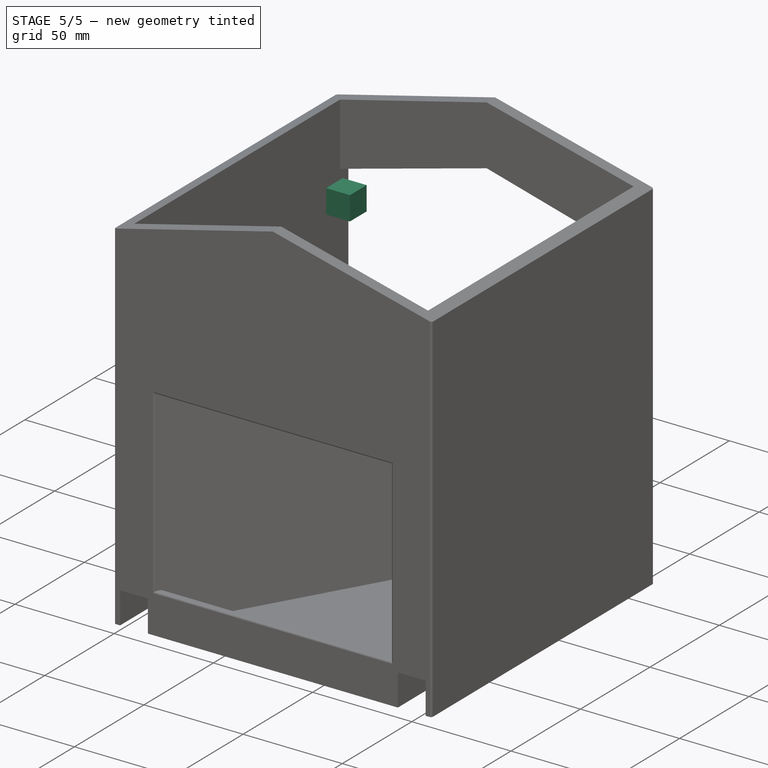
[diagram: stage 5 of 5 — iso view after this stage's code; geometry added in this stage tinted green]
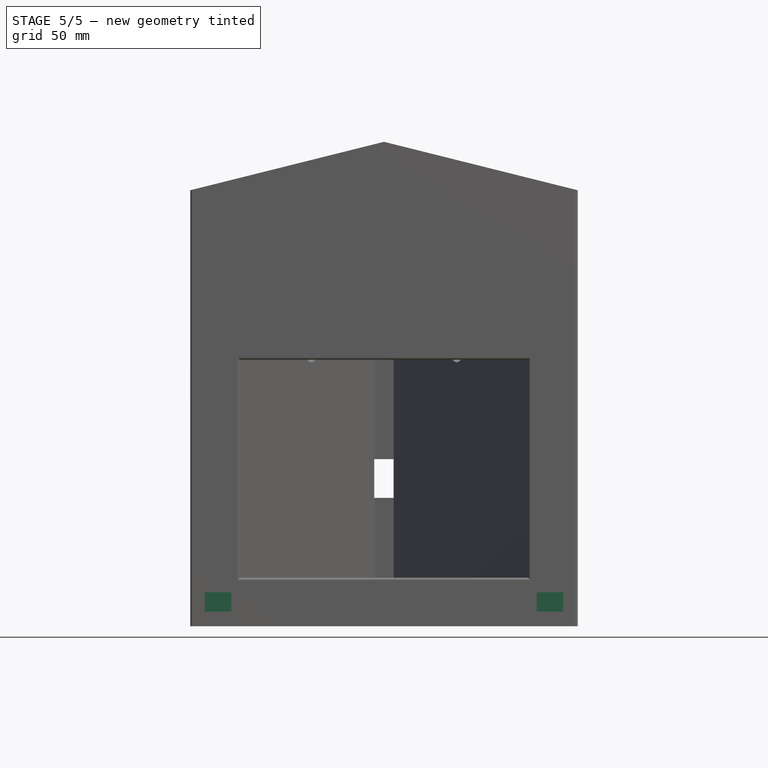
[diagram: stage 5 of 5 — front view after this stage's code; geometry added in this stage tinted green]
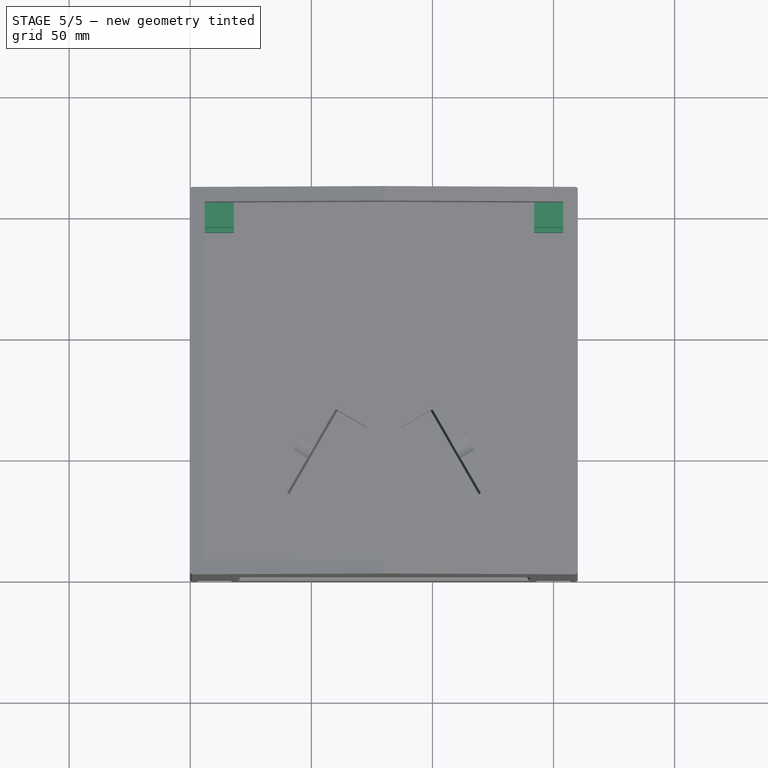
[diagram: stage 5 of 5 — top view after this stage's code; geometry added in this stage tinted green]
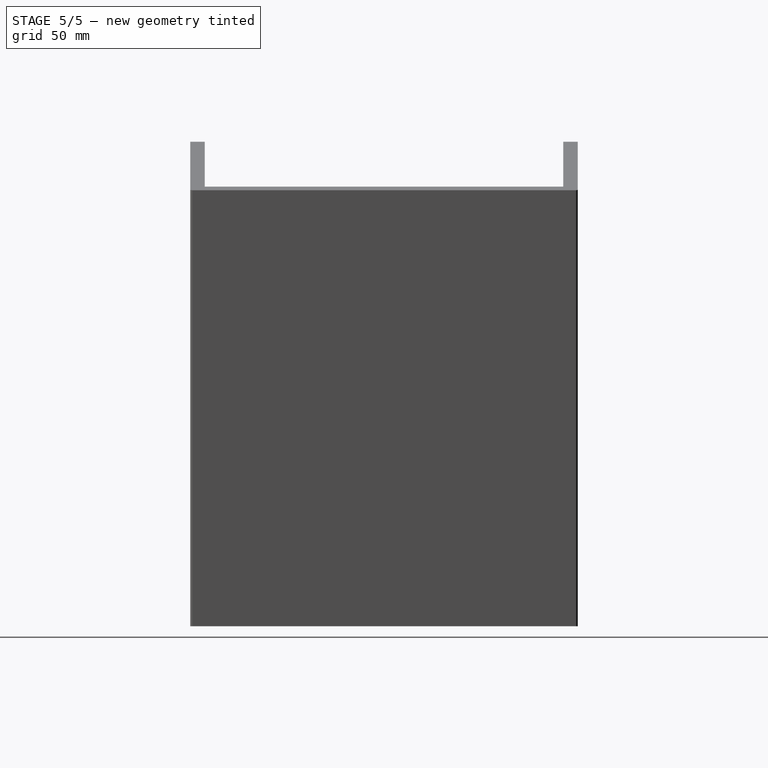
[diagram: stage 5 of 5 — right view after this stage's code; geometry added in this stage tinted green]
FEATURE [PartDesign::CoordinateSystem] LCS_0
  AttacherType = Attacher::AttachEngine3D
  MapMode = 2
  Support = -> [X_Axis001]
FEATURE [PartDesign::CoordinateSystem] LCS_1  label="LCS_motor1"
  AttacherType = Attacher::AttachEngine3D
  MapMode = 11
  Placement = pos=(124.551,40.1554,107) rot=(-0.774597,0.447214,-0.447214;1.82348rad)
  Support = -> [Pocket015]
FEATURE [PartDesign::CoordinateSystem] LCS_2  label="LCS_motor2"
  AttacherType = Attacher::AttachEngine3D
  MapMode = 11
  Placement = pos=(52.9487,70.4663,107) rot=(-0.377964,0.654654,0.654654;3.86433rad)
  Support = -> [Pocket015]
FEATURE [PartDesign::CoordinateSystem] LCS_3  label="LCS_camera"
  AttacherType = Attacher::AttachEngine3D
  MapMode = 45
  Placement = pos=(80,100,61) rot=(-1,0,0;1.5708rad)
  Support = -> [Pocket015]
FEATURE [PartDesign::CoordinateSystem] LCS_4  label="LCS_load1"
  AttacherType = Attacher::AttachEngine3D
  MapMode = 11
  Placement = pos=(10,34.5,14) rot=(0.707107,-0.707107,0;3.14159rad)
  Support = -> [Pocket015]
FEATURE [PartDesign::CoordinateSystem] LCS_5  label="LCS_load2"
  AttacherType = Attacher::AttachEngine3D
  MapMode = 11
  Placement = pos=(150,34.5,14) rot=(0.707107,-0.707107,0;3.14159rad)
  Support = -> [Pocket015]
FEATURE [PartDesign::CoordinateSystem] LCS_chute
  AttacherType = Attacher::AttachEngine3D
  MapMode = 45
  Placement = pos=(80,69.282,120) rot=(0.57735,0.57735,0.57735;2.0944rad)
  Support = -> [Pocket015]
FEATURE [PartDesign::CoordinateSystem] LCS_roof
  AttacherType = Attacher::AttachEngine3D
  MapMode = 1
  Placement = pos=(80,154,200) rot=(0,0,1;0rad)
  Support = -> [Pocket015]
FEATURE [PartDesign::CoordinateSystem] LCS_load2  label="LCS_load004"
  AttacherType = Attacher::AttachEngine3D
  MapMode = 11
  Placement = pos=(10,34.5,14) rot=(0.707107,-0.707107,0;3.14159rad)
  Support = -> [Pocket015]
FEATURE [Sketcher::SketchObject] Sketch017
  FullyConstrained = true
  MapMode = 5
  Placement = pos=(154,0,0) rot=(0.707107,0,-0.707107;3.14159rad)
  Support = -> [Pocket015]
  sketch-geometry (8):
    g0: LineSegment StartX=-6 StartY=-156 StartZ=0 EndX=-18 EndY=-156 EndZ=0
    g1: LineSegment StartX=-18 StartY=-156 StartZ=0 EndX=-18 EndY=-144 EndZ=0
    g2: LineSegment StartX=-18 StartY=-144 StartZ=0 EndX=-6 EndY=-144 EndZ=0
    g3: LineSegment StartX=-6 StartY=-144 StartZ=0 EndX=-6 EndY=-156 EndZ=0
    g4: LineSegment StartX=-133 StartY=-156 StartZ=0 EndX=-145 EndY=-156 EndZ=0
    g5: LineSegment StartX=-145 StartY=-156 StartZ=0 EndX=-145 EndY=-144 EndZ=0
    g6: LineSegment StartX=-145 StartY=-144 StartZ=0 EndX=-133 EndY=-144 EndZ=0
    g7: LineSegment StartX=-133 StartY=-144 StartZ=0 EndX=-133 EndY=-156 EndZ=0
  constraints (24):
    c: Coincident(g0,g1)
    c: Coincident(g1,g2)
    c: Coincident(g2,g3)
    c: Coincident(g3,g0)
    c: Horizontal(g0)
    c: Horizontal(g2)
    c: Vertical(g1)
    c: Vertical(g3)
    c: Coincident(g4,g5)
    c: Coincident(g5,g6)
    c: Coincident(g6,g7)
    c: Coincident(g7,g4)
    c: Horizontal(g4)
    c: Horizontal(g6)
    c: Vertical(g5)
    c: Vertical(g7)
    c: DistanceX(g0,g-1) = 6
    c: DistanceY(g1,g1) = 12
    c: Equal(g7,g1)
    c: Horizontal(g0,g4)
    c: Equal(g6,g2)
    c: DistanceX(g2,g2) = 12
    c: DistanceX(g4,g0) = 115
    c: DistanceY(g0,g-1) = 156
FEATURE [PartDesign::Pad] Pad003
  BaseFeature = -> Pocket015
  Direction = (-1,0,-2e-16)
  Length = 12
  Length2 = 10
  Placement = pos=(0,0,0) rot=(1,0,0;1.5708rad)
  Profile = -> Sketch017
  ReferenceAxis = -> Sketch017 [N_Axis]
  Type = 0
FEATURE [Sketcher::SketchObject] Sketch018
  FullyConstrained = true
  MapMode = 5
  Placement = pos=(6,0,0) rot=(0.707107,0,0.707107;3.14159rad)
  Support = -> [Pad003]
  sketch-geometry (8):
    g0: LineSegment StartX=6 StartY=-156 StartZ=0 EndX=18 EndY=-156 EndZ=0
    g1: LineSegment StartX=18 StartY=-156 StartZ=0 EndX=18 EndY=-144 EndZ=0
    g2: LineSegment StartX=18 StartY=-144 StartZ=0 EndX=6 EndY=-144 EndZ=0
    g3: LineSegment StartX=6 StartY=-144 StartZ=0 EndX=6 EndY=-156 EndZ=0
    g4: LineSegment StartX=133 StartY=-156 StartZ=0 EndX=145 EndY=-156 EndZ=0
    g5: LineSegment StartX=145 StartY=-156 StartZ=0 EndX=145 EndY=-144 EndZ=0
    g6: LineSegment StartX=145 StartY=-144 StartZ=0 EndX=133 EndY=-144 EndZ=0
    g7: LineSegment StartX=133 StartY=-144 StartZ=0 EndX=133 EndY=-156 EndZ=0
  constraints (24):
    c: Coincident(g0,g1)
    c: Coincident(g1,g2)
    c: Coincident(g2,g3)
    c: Coincident(g3,g0)
    c: Horizontal(g0)
    c: Horizontal(g2)
    c: Vertical(g1)
    c: Vertical(g3)
    c: Coincident(g4,g5)
    c: Coincident(g5,g6)
    c: Coincident(g6,g7)
    c: Coincident(g7,g4)
    c: Horizontal(g4)
    c: Horizontal(g6)
    c: Vertical(g5)
    c: Vertical(g7)
    c: Equal(g7,g1)
    c: Equal(g2,g6)
    c: DistanceX(g4,g4) = 12
    c: DistanceY(g7,g7) = 12
    c: DistanceX(g0,g4) = 115
    c: Horizontal(g0,g4)
    c: DistanceY(g0,g-1) = 156
    c: DistanceX(g-1,g0) = 6
FEATURE [PartDesign::Pad] Pad004
  BaseFeature = -> Pad003
  Direction = (1,0,-2e-16)
  Length = 12
  Length2 = 10
  Placement = pos=(0,0,0) rot=(1,0,0;1.5708rad)
  Profile = -> Sketch018
  ReferenceAxis = -> Sketch018 [N_Axis]
  Type = 0
FEATURE [Sketcher::SketchObject] Sketch019
  FullyConstrained = true
  MapMode = 5
  Placement = pos=(0,156,-3.46e-14) rot=(-1,0,0;1.5708rad)
  Support = -> [Pad004]
  sketch-geometry (8):
    g0: LineSegment StartX=12 StartY=-12 StartZ=0 EndX=148 EndY=-12 EndZ=0
    g1: LineSegment StartX=148 StartY=-12 StartZ=0 EndX=148 EndY=-139 EndZ=0
    g2: LineSegment StartX=148 StartY=-139 StartZ=0 EndX=12 EndY=-139 EndZ=0
    g3: LineSegment StartX=12 StartY=-139 StartZ=0 EndX=12 EndY=-12 EndZ=0
    g4: Circle CenterX=148 CenterY=-12 CenterZ=0 NormalX=0 NormalY=0 NormalZ=1 AngleXU=0 Radius=2.75
    g5: Circle CenterX=148 CenterY=-139 CenterZ=0 NormalX=0 NormalY=0 NormalZ=1 AngleXU=0 Radius=2.75
    g6: Circle CenterX=12 CenterY=-139 CenterZ=0 NormalX=0 NormalY=0 NormalZ=1 AngleXU=0 Radius=2.75
    g7: Circle CenterX=12 CenterY=-12 CenterZ=0 NormalX=0 NormalY=0 NormalZ=1 AngleXU=0 Radius=2.75
  constraints (20):
    c: Coincident(g0,g1)
    c: Coincident(g1,g2)
    c: Coincident(g2,g3)
    c: Coincident(g3,g0)
    c: Horizontal(g0)
    c: Horizontal(g2)
    c: Vertical(g1)
    c: Vertical(g3)
    c: Coincident(g4,g0)
    c: Coincident(g5,g1)
    c: Coincident(g6,g2)
    c: Coincident(g7,g0)
    c: Equal(g7,g4)
    c: Equal(g4,g5)
    c: Equal(g5,g6)
    c: Diameter(g4) = 5.5
    c: DistanceY(g7,g-1) = 12
    c: DistanceX(g-1,g7) = 12
    c: DistanceX(g0,g0) = 136
    c: DistanceY(g3,g3) = 127
FEATURE [PartDesign::Pocket] Pocket016
  BaseFeature = -> Pad004
  Direction = (0,-1,-2e-16)
  Length = 9
  Length2 = 5
  Placement = pos=(0,0,0) rot=(1,0,0;1.5708rad)
  Profile = -> Sketch019
  ReferenceAxis = -> Sketch019 [N_Axis]
  Type = 0
FEATURE [PartDesign::CoordinateSystem] LCS_back_panel
  AttacherType = Attacher::AttachEngine3D
  MapMode = 11
  Placement = pos=(12,156,12) rot=(0.57735,-0.57735,-0.57735;4.18879rad)
  Support = -> [Pocket016]
FEATURE [PartDesign::Fillet] Fillet
  Base = -> Pocket016 [Edge4,Edge3,Edge29,Edge34,Edge32,Edge31,Edge33,Edge35]
  BaseFeature = -> Pocket016
  Placement = pos=(0,0,0) rot=(1,0,0;1.5708rad)
  Radius = 1
  SupportTransform = false
  UseAllEdges = false
FEATURE [PartDesign::Body] Body
  Group = -> [Sketch,Pad,Sketch001,Pocket,Sketch002,Pad001,Sketch003,Pocket001,Sketch004,Pocket002,Sketch005,Sketch006,Pocket004,Sketch007,Pocket005,Sketch008,Pad002,Sketch009,Sketch010,Pocket008,Sketch011,Pocket009,Pocket010,Pocket011,Sketch012,Pocket012,Sketch013,Pocket013,Sketch015,Pocket014,Sketch016,Pocket015,Sketch017,Pad003,Sketch018,Pad004,Sketch019,Pocket016,Fillet]
  Origin = -> Origin
  Tip = -> Fillet
FEATURE [App::Part] house
  Group = -> [LCS_0,Body,LCS_1,LCS_2,LCS_3,LCS_4,LCS_5,LCS_chute,LCS_roof,LCS_load2,LCS_back_panel]
  Origin = -> Origin001
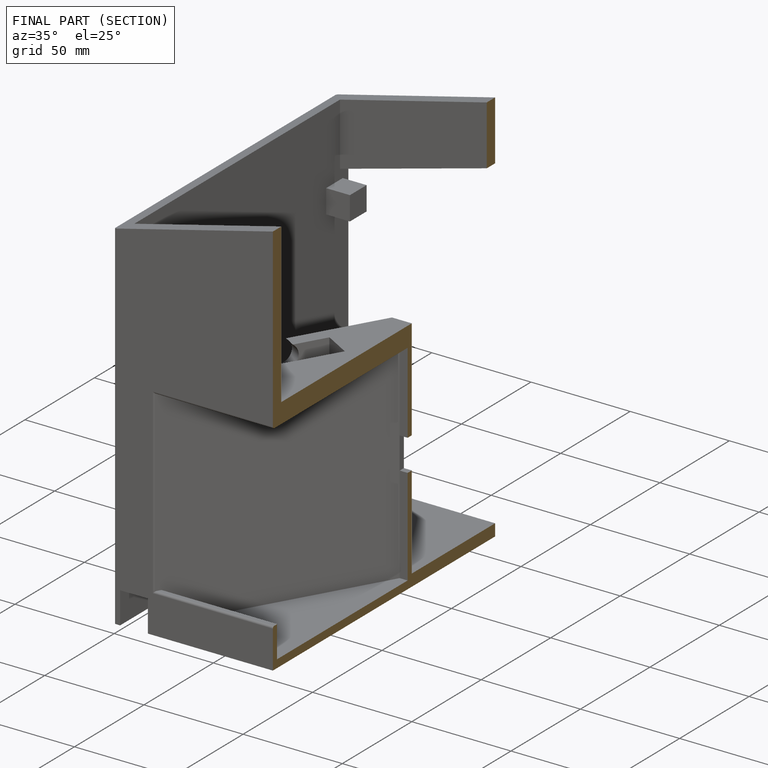
[diagram: finished part — half-section view (interior)]
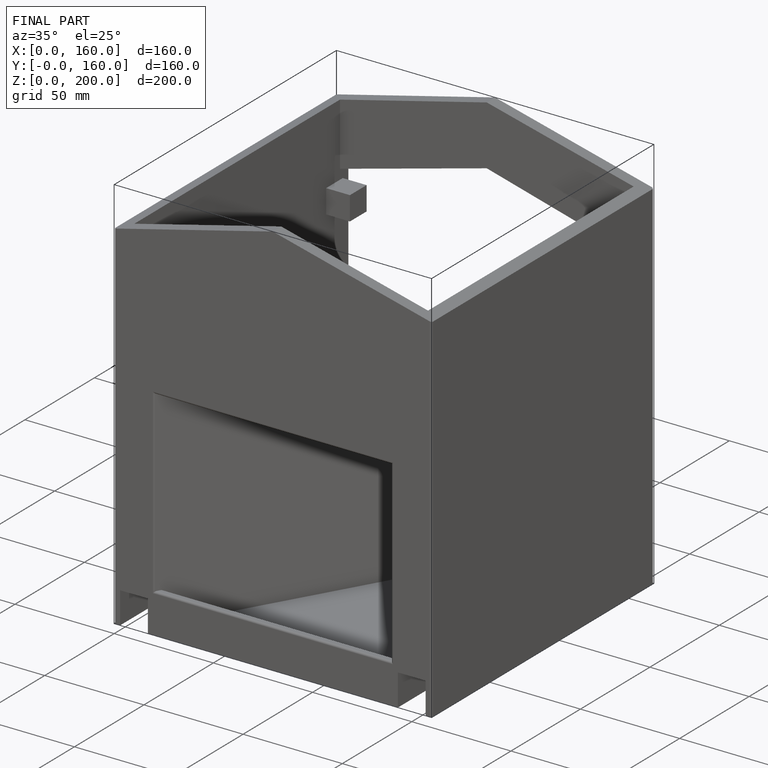
[diagram: finished part — iso view with bounding-box wireframe]
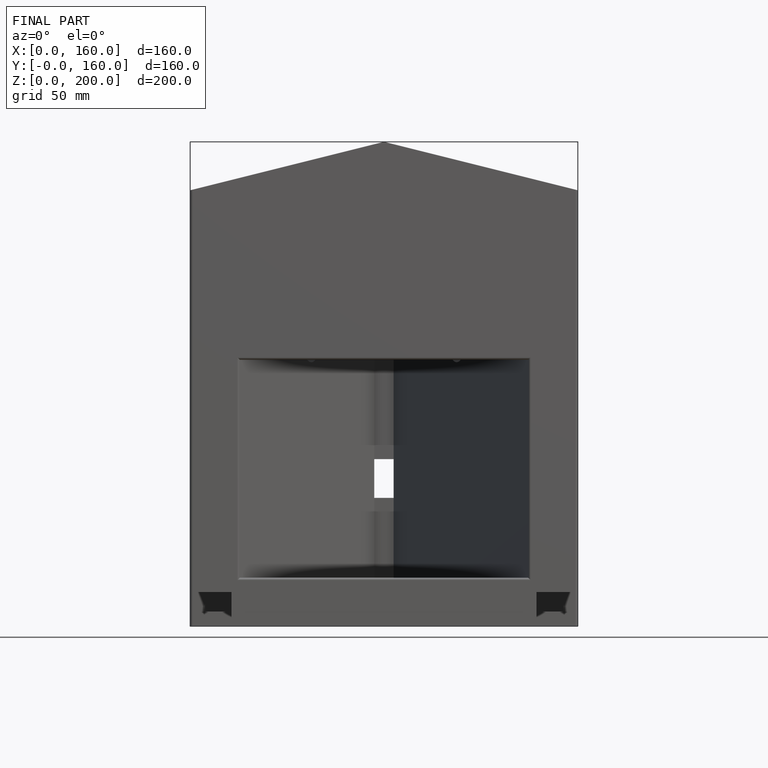
[diagram: finished part — front view with bounding-box wireframe]
